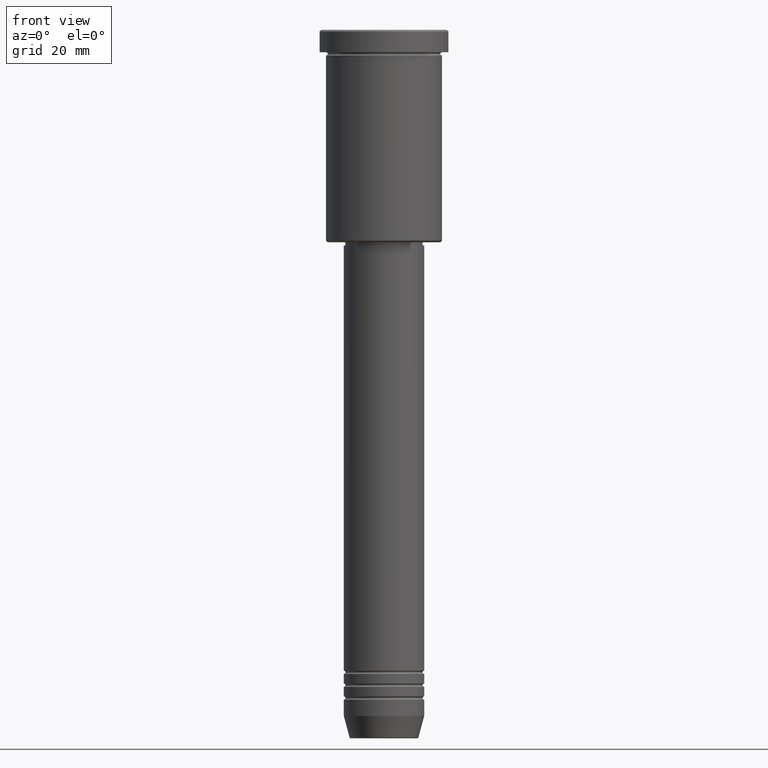
[diagram: clean part render]
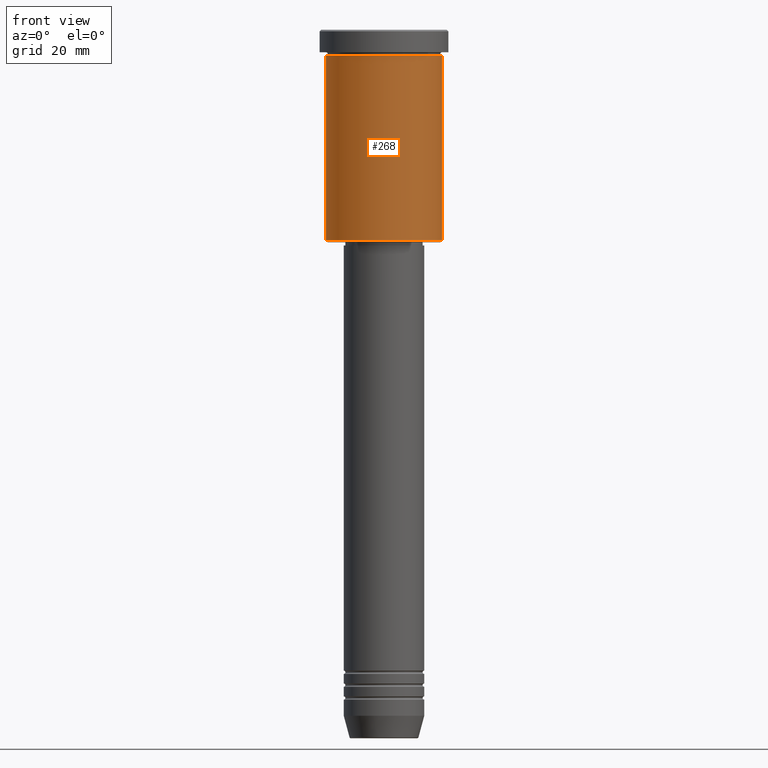
[diagram: same view with one face highlighted and labeled with its STEP entity id]
A machine part, front view. The second image highlights one B-rep face of the part: STEP entity #268.
In plain terms, the highlighted cylindrical surface (partial cylindrical patch) has radius 18 mm, axis along (-0, -0, 1).
Its self-contained STEP definition (entity closure, byte-faithful):
#2 = CYLINDRICAL_SURFACE ( 'NONE', #170, 18.00000000000000000 ) ;
#31 = EDGE_CURVE ( 'NONE', #855, #168, #969, .T. ) ;
#68 = CARTESIAN_POINT ( 'NONE',  ( -18.00000000000000000, 2.204364238465235428E-15, 0.000000000000000000 ) ) ;
#74 = VECTOR ( 'NONE', #297, 1000.000000000000000 ) ;
#87 = DIRECTION ( 'NONE',  ( -0.000000000000000000, -0.000000000000000000, 1.000000000000000000 ) ) ;
#118 = CARTESIAN_POINT ( 'NONE',  ( 0.000000000000000000, 0.000000000000000000, 0.000000000000000000 ) ) ;
#136 = LINE ( 'NONE', #569, #74 ) ;
#145 = DIRECTION ( 'NONE',  ( 1.000000000000000000, 0.000000000000000000, 0.000000000000000000 ) ) ;
#168 = VERTEX_POINT ( 'NONE', #708 ) ;
#170 = AXIS2_PLACEMENT_3D ( 'NONE', #118, #382, #736 ) ;
#225 = AXIS2_PLACEMENT_3D ( 'NONE', #593, #1074, #145 ) ;
#268 = ADVANCED_FACE ( 'NONE', ( #830 ), #2, .T. ) ;
#297 = DIRECTION ( 'NONE',  ( -0.000000000000000000, -0.000000000000000000, 1.000000000000000000 ) ) ;
#382 = DIRECTION ( 'NONE',  ( -0.000000000000000000, -0.000000000000000000, 1.000000000000000000 ) ) ;
#397 = DIRECTION ( 'NONE',  ( -0.000000000000000000, -0.000000000000000000, 1.000000000000000000 ) ) ;
#435 = VERTEX_POINT ( 'NONE', #752 ) ;
#482 = VERTEX_POINT ( 'NONE', #975 ) ;
#512 = EDGE_LOOP ( 'NONE', ( #951, #906, #1065, #618 ) ) ;
#520 = EDGE_CURVE ( 'NONE', #435, #482, #1142, .T. ) ;
#569 = CARTESIAN_POINT ( 'NONE',  ( 18.00000000000000000, 0.000000000000000000, 0.000000000000000000 ) ) ;
#571 = CARTESIAN_POINT ( 'NONE',  ( 0.000000000000000000, 0.000000000000000000, -65.49999999999998579 ) ) ;
#590 = DIRECTION ( 'NONE',  ( -1.000000000000000000, 0.000000000000000000, 0.000000000000000000 ) ) ;
#593 = CARTESIAN_POINT ( 'NONE',  ( 0.000000000000000000, 0.000000000000000000, -7.999999999999996447 ) ) ;
#618 = ORIENTED_EDGE ( 'NONE', *, *, #520, .F. ) ;
#708 = CARTESIAN_POINT ( 'NONE',  ( 18.00000000000000000, 0.000000000000000000, -65.49999999999998579 ) ) ;
#736 = DIRECTION ( 'NONE',  ( 1.000000000000000000, 0.000000000000000000, 0.000000000000000000 ) ) ;
#752 = CARTESIAN_POINT ( 'NONE',  ( -18.00000000000000000, 2.204364238465235428E-15, -7.999999999999996447 ) ) ;
#781 = VECTOR ( 'NONE', #87, 1000.000000000000000 ) ;
#830 = FACE_OUTER_BOUND ( 'NONE', #512, .T. ) ;
#855 = VERTEX_POINT ( 'NONE', #1118 ) ;
#906 = ORIENTED_EDGE ( 'NONE', *, *, #31, .T. ) ;
#951 = ORIENTED_EDGE ( 'NONE', *, *, #1134, .F. ) ;
#969 = CIRCLE ( 'NONE', #1127, 18.00000000000000000 ) ;
#975 = CARTESIAN_POINT ( 'NONE',  ( 18.00000000000000000, 0.000000000000000000, -7.999999999999996447 ) ) ;
#984 = LINE ( 'NONE', #68, #781 ) ;
#990 = EDGE_CURVE ( 'NONE', #168, #482, #136, .T. ) ;
#1065 = ORIENTED_EDGE ( 'NONE', *, *, #990, .T. ) ;
#1074 = DIRECTION ( 'NONE',  ( -0.000000000000000000, -0.000000000000000000, 1.000000000000000000 ) ) ;
#1118 = CARTESIAN_POINT ( 'NONE',  ( -18.00000000000000000, 2.204364238465235428E-15, -65.49999999999998579 ) ) ;
#1127 = AXIS2_PLACEMENT_3D ( 'NONE', #571, #397, #590 ) ;
#1134 = EDGE_CURVE ( 'NONE', #855, #435, #984, .T. ) ;
#1142 = CIRCLE ( 'NONE', #225, 18.00000000000000000 ) ;